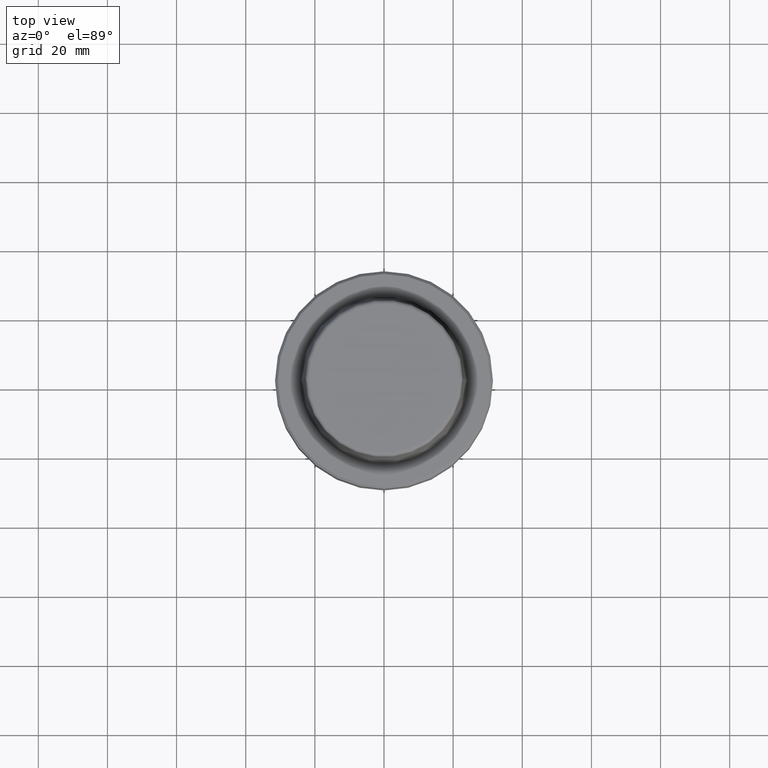
[diagram: clean part render]
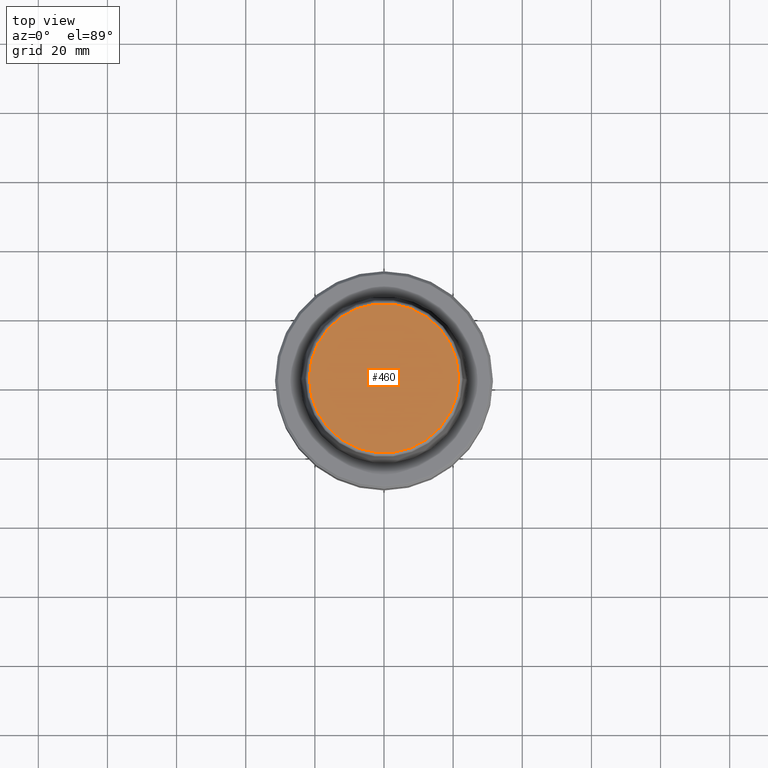
[diagram: same view with one face highlighted and labeled with its STEP entity id]
A machine part, top view. The second image highlights one B-rep face of the part: STEP entity #460.
In plain terms, the highlighted planar face has unit normal (0, 0, -1).
Its self-contained STEP definition (entity closure, byte-faithful):
#22 = EDGE_CURVE ( 'NONE', #358, #472, #153, .T. ) ;
#55 = CARTESIAN_POINT ( 'NONE',  ( -21.58108272732117100, 2.716307157494421400E-015, 31.89999999999999900 ) ) ;
#145 = PLANE ( 'NONE',  #966 ) ;
#153 = CIRCLE ( 'NONE', #436, 21.58108272732117100 ) ;
#199 = ORIENTED_EDGE ( 'NONE', *, *, #220, .T. ) ;
#214 = CIRCLE ( 'NONE', #481, 21.58108272732117100 ) ;
#220 = EDGE_CURVE ( 'NONE', #472, #358, #214, .T. ) ;
#246 = FACE_OUTER_BOUND ( 'NONE', #413, .T. ) ;
#247 = CARTESIAN_POINT ( 'NONE',  ( 0.0000000000000000000, 0.0000000000000000000, 31.89999999999999900 ) ) ;
#345 = DIRECTION ( 'NONE',  ( -1.000000000000000000, 0.0000000000000000000, -0.0000000000000000000 ) ) ;
#358 = VERTEX_POINT ( 'NONE', #892 ) ;
#379 = DIRECTION ( 'NONE',  ( -0.0000000000000000000, -0.0000000000000000000, 1.000000000000000000 ) ) ;
#404 = CARTESIAN_POINT ( 'NONE',  ( 0.0000000000000000000, 0.0000000000000000000, 31.89999999999999900 ) ) ;
#413 = EDGE_LOOP ( 'NONE', ( #788, #199 ) ) ;
#436 = AXIS2_PLACEMENT_3D ( 'NONE', #404, #379, #1054 ) ;
#457 = CARTESIAN_POINT ( 'NONE',  ( 0.0000000000000000000, 0.0000000000000000000, 31.89999999999999900 ) ) ;
#460 = ADVANCED_FACE ( 'NONE', ( #246 ), #145, .F. ) ;
#472 = VERTEX_POINT ( 'NONE', #55 ) ;
#481 = AXIS2_PLACEMENT_3D ( 'NONE', #457, #1122, #554 ) ;
#554 = DIRECTION ( 'NONE',  ( 1.000000000000000000, 0.0000000000000000000, 0.0000000000000000000 ) ) ;
#788 = ORIENTED_EDGE ( 'NONE', *, *, #22, .T. ) ;
#892 = CARTESIAN_POINT ( 'NONE',  ( 21.58108272732117100, 0.0000000000000000000, 31.89999999999999900 ) ) ;
#926 = DIRECTION ( 'NONE',  ( 0.0000000000000000000, 0.0000000000000000000, -1.000000000000000000 ) ) ;
#966 = AXIS2_PLACEMENT_3D ( 'NONE', #247, #926, #345 ) ;
#1054 = DIRECTION ( 'NONE',  ( 1.000000000000000000, 0.0000000000000000000, 0.0000000000000000000 ) ) ;
#1122 = DIRECTION ( 'NONE',  ( -0.0000000000000000000, -0.0000000000000000000, 1.000000000000000000 ) ) ;